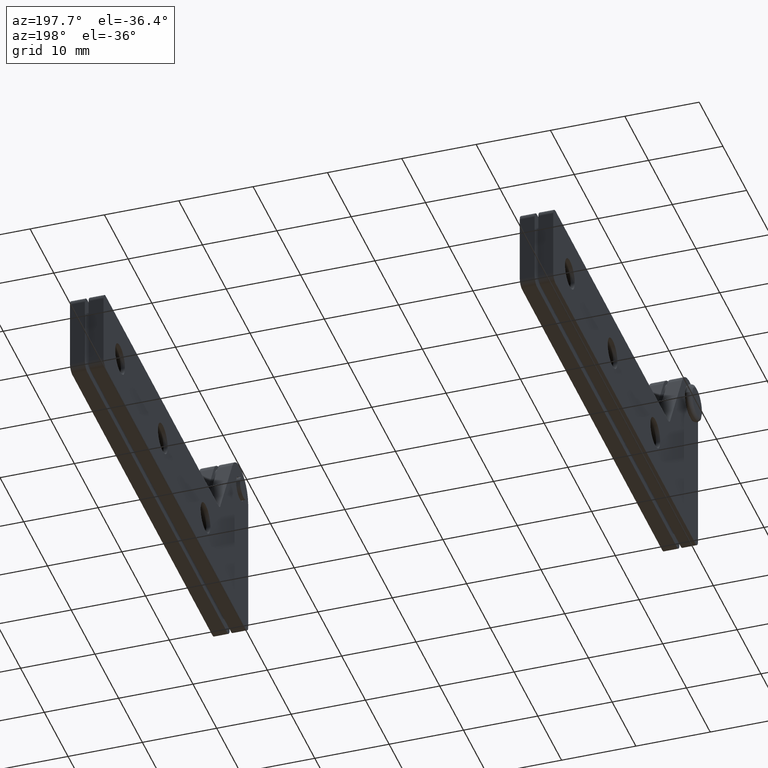
[diagram: clean part render]
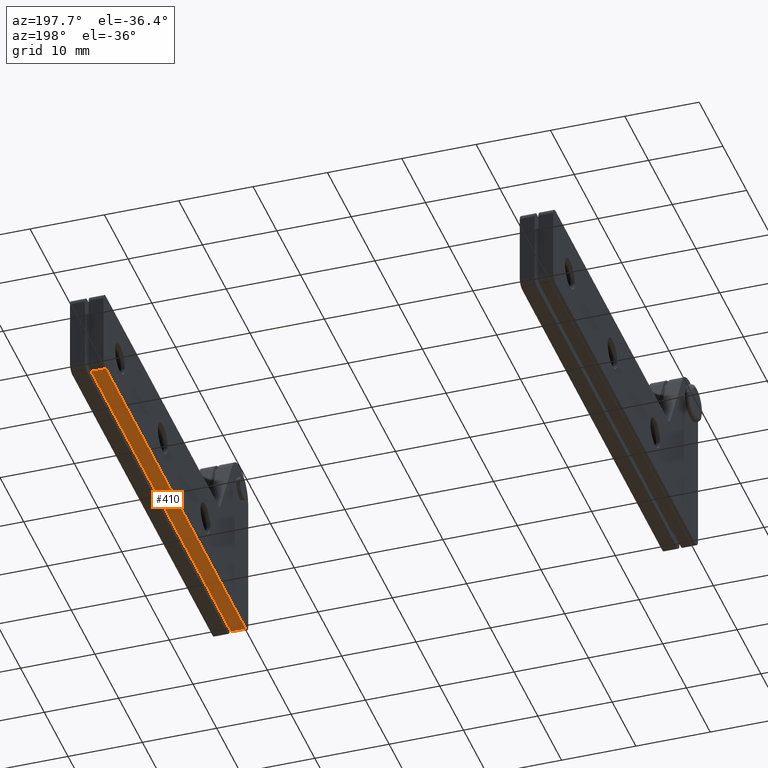
[diagram: same view with one face highlighted and labeled with its STEP entity id]
A machine part, auxiliary view. The second image highlights one B-rep face of the part: STEP entity #410.
In plain terms, the highlighted planar face has unit normal (0, 0, 1).
Its self-contained STEP definition (entity closure, byte-faithful):
#410=ADVANCED_FACE('',(#1252),#1251,.F.);
#1251=PLANE('',#2366);
#1252=FACE_OUTER_BOUND('',#2367,.T.);
#2363=CARTESIAN_POINT('',(8.40000000000E+000,-2.00000000000E-001,-2.05000000000E+001));
#2364=DIRECTION('',(0.00000000000E+000,0.00000000000E+000,-1.00000000000E+000));
#2365=DIRECTION('',(-1.00000000000E+000,0.00000000000E+000,0.00000000000E+000));
#2366=AXIS2_PLACEMENT_3D('',#2363,#2364,#2365);
#2367=EDGE_LOOP('',(#3187,#3188,#3189,#3190));
#3187=ORIENTED_EDGE('',*,*,#3606,.T.);
#3188=ORIENTED_EDGE('',*,*,#3628,.F.);
#3189=ORIENTED_EDGE('',*,*,#3589,.F.);
#3190=ORIENTED_EDGE('',*,*,#3625,.T.);
#3589=EDGE_CURVE('',#4797,#4804,#4805,.T.);
#3606=EDGE_CURVE('',#4922,#4923,#4924,.T.);
#3625=EDGE_CURVE('',#4797,#4922,#5055,.T.);
#3628=EDGE_CURVE('',#4804,#4923,#5073,.T.);
#4797=VERTEX_POINT('',#6475);
#4804=VERTEX_POINT('',#6480);
#4805=LINE('',#6481,#6482);
#4922=VERTEX_POINT('',#6559);
#4923=VERTEX_POINT('',#6560);
#4924=LINE('',#6561,#6562);
#5055=LINE('',#6649,#6650);
#5073=LINE('',#6658,#6659);
#6475=CARTESIAN_POINT('',(-5.65000000000E+001,2.00000000000E+000,-2.05000000000E+001));
#6480=CARTESIAN_POINT('',(2.50000000000E+000,2.00000000000E+000,-2.05000000000E+001));
#6481=CARTESIAN_POINT('',(-5.65000000000E+001,2.00000000000E+000,-2.05000000000E+001));
#6482=VECTOR('',#6483,5.90000000000E+001);
#6483=DIRECTION('',(1.00000000000E+000,0.00000000000E+000,0.00000000000E+000));
#6559=CARTESIAN_POINT('',(-5.65000000000E+001,0.00000000000E+000,-2.05000000000E+001));
#6560=CARTESIAN_POINT('',(2.50000000000E+000,0.00000000000E+000,-2.05000000000E+001));
#6561=CARTESIAN_POINT('',(-5.65000000000E+001,0.00000000000E+000,-2.05000000000E+001));
#6562=VECTOR('',#6563,5.90000000000E+001);
#6563=DIRECTION('',(1.00000000000E+000,0.00000000000E+000,0.00000000000E+000));
#6649=CARTESIAN_POINT('',(-5.65000000000E+001,2.00000000000E+000,-2.05000000000E+001));
#6650=VECTOR('',#6651,2.00000000000E+000);
#6651=DIRECTION('',(0.00000000000E+000,-1.00000000000E+000,0.00000000000E+000));
#6658=CARTESIAN_POINT('',(2.50000000000E+000,2.00000000000E+000,-2.05000000000E+001));
#6659=VECTOR('',#6660,2.00000000000E+000);
#6660=DIRECTION('',(0.00000000000E+000,-1.00000000000E+000,0.00000000000E+000));